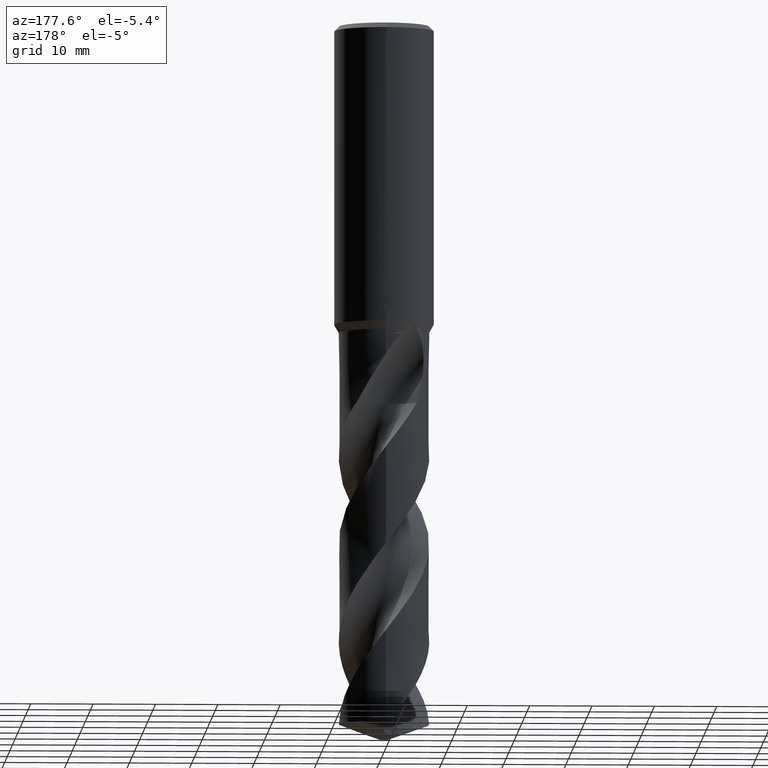
[diagram: clean part render]
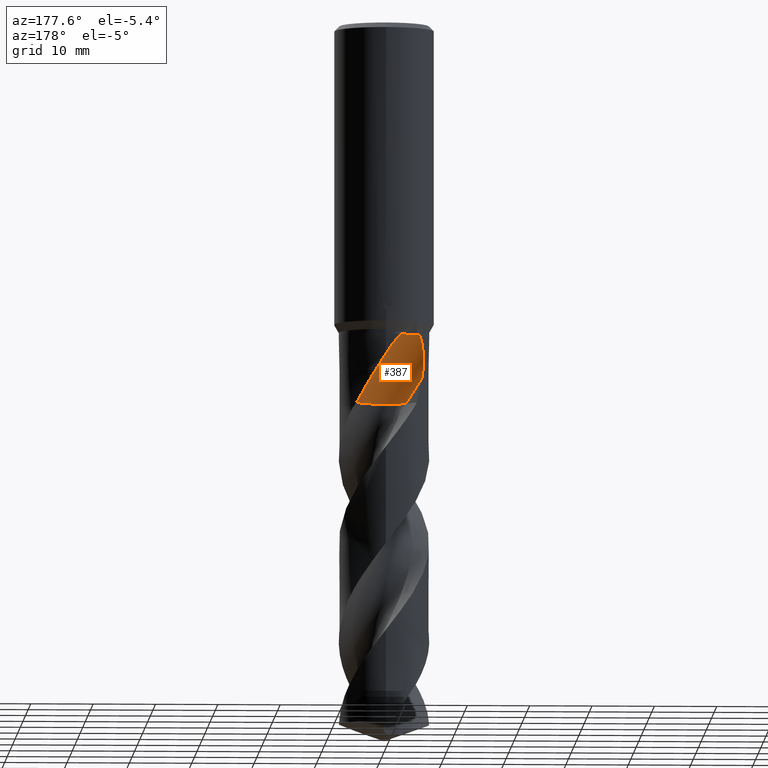
[diagram: same view with one face highlighted and labeled with its STEP entity id]
A machine part, auxiliary view. The second image highlights one B-rep face of the part: STEP entity #387.
In plain terms, the highlighted face is a SurfaceOfRevolution surface.
Its self-contained STEP definition (entity closure, byte-faithful):
#297=VERTEX_POINT('',#828);
#359=VERTEX_POINT('',#898);
#387=ADVANCED_FACE('',(#929),#930,.F.);
#399=EDGE_CURVE('',#605,#733,#943,.T.);
#441=EDGE_CURVE('',#445,#733,#990,.T.);
#445=VERTEX_POINT('',#994);
#461=EDGE_CURVE('',#545,#359,#1011,.T.);
#545=VERTEX_POINT('',#1096);
#605=VERTEX_POINT('',#1161);
#651=EDGE_CURVE('',#545,#297,#1212,.T.);
#655=EDGE_CURVE('',#359,#605,#1216,.T.);
#661=VERTEX_POINT('',#1222);
#733=VERTEX_POINT('',#1305);
#771=EDGE_CURVE('',#661,#445,#1347,.T.);
#793=EDGE_CURVE('',#297,#661,#1371,.T.);
#828=CARTESIAN_POINT('',(-2.14672837880913E-012,7.24990522830676,-53.2604356602355));
#898=CARTESIAN_POINT('',(-0.528166579226103,2.20392502435465,-60.967));
#929=FACE_OUTER_BOUND('',#1907,.T.);
#930=SURFACE_OF_REVOLUTION('',#1908,#1909);
#943=CIRCLE('',#1926,31.5031342603898);
#990=B_SPLINE_CURVE_WITH_KNOTS('',3,(#2009,#2010,#2011,#2012,#2013,#2014,#2015,#2016,#2017,#2018),.UNSPECIFIED.,.F.,.F.,(4,2,2,2,4),(0.0,1.36164410322031,3.26478761448654,4.26460638670198,5.30819807820021),.UNSPECIFIED.);
#994=CARTESIAN_POINT('',(-5.49453423075707,4.72981433008092,-50.0));
#1011=CIRCLE('',#2066,4.83333333);
#1096=CARTESIAN_POINT('',(4.61977415179415,5.58739579713552,-60.967));
#1161=CARTESIAN_POINT('',(-3.41768277330725,3.59065055669276,-60.967));
#1212=B_SPLINE_CURVE_WITH_KNOTS('',3,(#4537,#4538,#4539,#4540,#4541,#4542,#4543,#4544,#4545,#4546,#4547,#4548,#4549,#4550),.UNSPECIFIED.,.F.,.F.,(4,2,2,2,2,2,4),(0.0,3.55209437328499,5.49161521112391,7.24832220547722,9.28917497335994,11.7406950782432,12.9978563520771),.UNSPECIFIED.);
#1216=CIRCLE('',#4555,4.83333333);
#1222=CARTESIAN_POINT('',(-2.46754710439139,6.81705664474116,-50.0));
#1305=CARTESIAN_POINT('',(-5.89882070127398,4.21486975337758,-56.9971793152532));
#1347=B_SPLINE_CURVE_WITH_KNOTS('',3,(#5122,#5123,#5124,#5125,#5126,#5127,#5128,#5129,#5130,#5131),.UNSPECIFIED.,.F.,.F.,(4,2,2,2,4),(0.0,1.57088891277895,3.00891111603402,4.46224382855093,6.24218715780073),.UNSPECIFIED.);
#1371=B_SPLINE_CURVE_WITH_KNOTS('',3,(#5250,#5251,#5252,#5253,#5254,#5255,#5256,#5257,#5258,#5259,#5260,#5261,#5262,#5263),.UNSPECIFIED.,.F.,.F.,(4,2,2,2,2,2,4),(0.0,3.55209437328499,5.49161521112391,7.24832220547722,9.28917497335994,11.7406950782432,12.9978563520771),.UNSPECIFIED.);
#1907=EDGE_LOOP('',(#5410,#5411,#5412,#5413,#5414,#5415,#5416));
#1908=(B_SPLINE_CURVE(3,(#5418,#5419,#5420,#5421,#5422,#5423,#5424,#5425,#5426),.UNSPECIFIED.,.F.,.F.)B_SPLINE_CURVE_WITH_KNOTS((4,1,3,1,4),(-2.85636999494402,-2.55358407150795,-2.25079814807189,-1.94801222463582,-1.64522630119976),.UNSPECIFIED.)RATIONAL_B_SPLINE_CURVE((1.09167931543103,1.03055977181034,0.969440228189657,1.03055977181034,1.09167931543103,1.03055977181034,0.969440228189657,1.03055977181034,1.09167931543103))BOUNDED_CURVE()REPRESENTATION_ITEM('')GEOMETRIC_REPRESENTATION_ITEM()CURVE());
#1909=AXIS1_PLACEMENT('',#5433,#5434);
#1926=AXIS2_PLACEMENT_3D('',#5455,#5456,#5457);
#2009=CARTESIAN_POINT('',(-5.49453423075707,4.72981433008092,-50.0));
#2010=CARTESIAN_POINT('',(-5.67367428917109,4.52171166201705,-50.3614006294927));
#2011=CARTESIAN_POINT('',(-5.81477907661679,4.33391673757844,-50.8105207124227));
#2012=CARTESIAN_POINT('',(-6.06778441428971,3.97597515908292,-52.0465508165152));
#2013=CARTESIAN_POINT('',(-6.15152512126032,3.83665670896599,-52.9201314051794));
#2014=CARTESIAN_POINT('',(-6.15864750975876,3.82521044636422,-54.4100592155721));
#2015=CARTESIAN_POINT('',(-6.13886795899558,3.85761908927592,-54.9232830115159));
#2016=CARTESIAN_POINT('',(-6.05496695232737,3.98808721550262,-55.9617999291144));
#2017=CARTESIAN_POINT('',(-5.98912957287726,4.08847870358248,-56.4835267500082));
#2018=CARTESIAN_POINT('',(-5.89882070127399,4.21486975337758,-56.9971793152532));
#2066=AXIS2_PLACEMENT_3D('',#5533,#5534,#5535);
#4537=CARTESIAN_POINT('',(4.61977415179415,5.58739579713551,-60.967));
#4538=CARTESIAN_POINT('',(4.14154367442326,5.9828045268533,-59.958596291188));
#4539=CARTESIAN_POINT('',(3.59168476937503,6.33429739451814,-59.0184382106249));
#4540=CARTESIAN_POINT('',(2.63289307892632,6.76512500101583,-57.4478459570396));
#4541=CARTESIAN_POINT('',(2.28787458963403,6.88905781188813,-56.8952599936745));
#4542=CARTESIAN_POINT('',(1.61996338575641,7.0742787936603,-55.8256017291565));
#4543=CARTESIAN_POINT('',(1.30005266215245,7.13971677014958,-55.3135146167934));
#4544=CARTESIAN_POINT('',(0.607582988118754,7.23415896437711,-54.2098375106503));
#4545=CARTESIAN_POINT('',(0.229239382590965,7.25633112457762,-53.6096081772032));
#4546=CARTESIAN_POINT('',(-0.610964078626756,7.23865642877651,-52.3255235193171));
#4547=CARTESIAN_POINT('',(-1.10911910919137,7.1839925311764,-51.5948680199302));
#4548=CARTESIAN_POINT('',(-1.8876227654521,7.00508838841798,-50.6184841735192));
#4549=CARTESIAN_POINT('',(-2.1719829644985,6.92404149858139,-50.289979661197));
#4550=CARTESIAN_POINT('',(-2.46754710439139,6.81705664474116,-50.0));
#4555=AXIS2_PLACEMENT_3D('',#5695,#5696,#5697);
#5122=CARTESIAN_POINT('',(-2.26969057634829,7.29989999999999,-50.0));
#5123=CARTESIAN_POINT('',(-2.43802695326549,6.80406649813455,-50.0));
#5124=CARTESIAN_POINT('',(-2.69355009361567,6.34621721197536,-49.9999999999809));
#5125=CARTESIAN_POINT('',(-3.35524042555244,5.5953522103201,-49.9999999999809));
#5126=CARTESIAN_POINT('',(-3.73542758259822,5.30500826998966,-50.0000000000011));
#5127=CARTESIAN_POINT('',(-4.59946769406047,4.8835847086815,-50.0000000000011));
#5128=CARTESIAN_POINT('',(-5.068943879213,4.76165457978957,-50.0000000000001));
#5129=CARTESIAN_POINT('',(-6.14215952014459,4.68035265331167,-50.0000000000001));
#5130=CARTESIAN_POINT('',(-6.73532929104365,4.76446018138352,-50.0));
#5131=CARTESIAN_POINT('',(-7.2999,4.9501105978611,-50.0));
#5250=CARTESIAN_POINT('',(4.61977415179415,5.58739579713551,-60.967));
#5251=CARTESIAN_POINT('',(4.14154367442326,5.9828045268533,-59.958596291188));
#5252=CARTESIAN_POINT('',(3.59168476937503,6.33429739451814,-59.0184382106249));
#5253=CARTESIAN_POINT('',(2.63289307892632,6.76512500101583,-57.4478459570396));
#5254=CARTESIAN_POINT('',(2.28787458963403,6.88905781188813,-56.8952599936745));
#5255=CARTESIAN_POINT('',(1.61996338575641,7.0742787936603,-55.8256017291565));
#5256=CARTESIAN_POINT('',(1.30005266215245,7.13971677014958,-55.3135146167934));
#5257=CARTESIAN_POINT('',(0.607582988118754,7.23415896437711,-54.2098375106503));
#5258=CARTESIAN_POINT('',(0.229239382590965,7.25633112457762,-53.6096081772032));
#5259=CARTESIAN_POINT('',(-0.610964078626756,7.23865642877651,-52.3255235193171));
#5260=CARTESIAN_POINT('',(-1.10911910919137,7.1839925311764,-51.5948680199302));
#5261=CARTESIAN_POINT('',(-1.8876227654521,7.00508838841798,-50.6184841735192));
#5262=CARTESIAN_POINT('',(-2.1719829644985,6.92404149858139,-50.289979661197));
#5263=CARTESIAN_POINT('',(-2.46754710439139,6.81705664474116,-50.0));
#5410=ORIENTED_EDGE('',*,*,#441,.F.);
#5411=ORIENTED_EDGE('',*,*,#771,.F.);
#5412=ORIENTED_EDGE('',*,*,#793,.F.);
#5413=ORIENTED_EDGE('',*,*,#651,.F.);
#5414=ORIENTED_EDGE('',*,*,#461,.T.);
#5415=ORIENTED_EDGE('',*,*,#655,.T.);
#5416=ORIENTED_EDGE('',*,*,#399,.T.);
#5418=CARTESIAN_POINT('',(-3.41768277330725,3.59065055669276,-60.967));
#5419=CARTESIAN_POINT('',(-2.74826044825096,2.92121961923583,-60.967));
#5420=CARTESIAN_POINT('',(-1.00757131298157,1.97001969437906,-60.967));
#5421=CARTESIAN_POINT('',(0.965059606035759,2.17860353850252,-60.967));
#5422=CARTESIAN_POINT('',(1.84045239566435,2.53909139290888,-60.967));
#5423=CARTESIAN_POINT('',(2.71584518529295,2.89957924731523,-60.967));
#5424=CARTESIAN_POINT('',(4.26332493694169,4.14058141529465,-60.967));
#5425=CARTESIAN_POINT('',(4.8294185543976,6.04171738596275,-60.967));
#5426=CARTESIAN_POINT('',(4.8333143902725,6.98842159096612,-60.967));
#5433=CARTESIAN_POINT('',(-2.45765952237825,35.04166665,-62.5030372014864));
#5434=DIRECTION('',(0.847998304005088,-0.0,0.52999894000318));
#5455=CARTESIAN_POINT('',(-2.45765952237825,35.04166665,-62.5030372014864));
#5456=DIRECTION('',(-0.847998304005088,7.15949970660573E-018,-0.52999894000318));
#5457=DIRECTION('',(-0.0535598123663436,-0.994880693117242,0.0856956997861498));
#5533=CARTESIAN_POINT('',(2.1984823974926E-005,7.00831134517603,-60.967));
#5534=DIRECTION('',(0.0,0.0,-1.0));
#5535=DIRECTION('',(0.707102232587646,0.70711132975619,0.0));
#5695=CARTESIAN_POINT('',(2.1984823974926E-005,7.00831134517603,-60.967));
#5696=DIRECTION('',(0.0,0.0,-1.0));
#5697=DIRECTION('',(0.707102232587646,0.70711132975619,0.0));